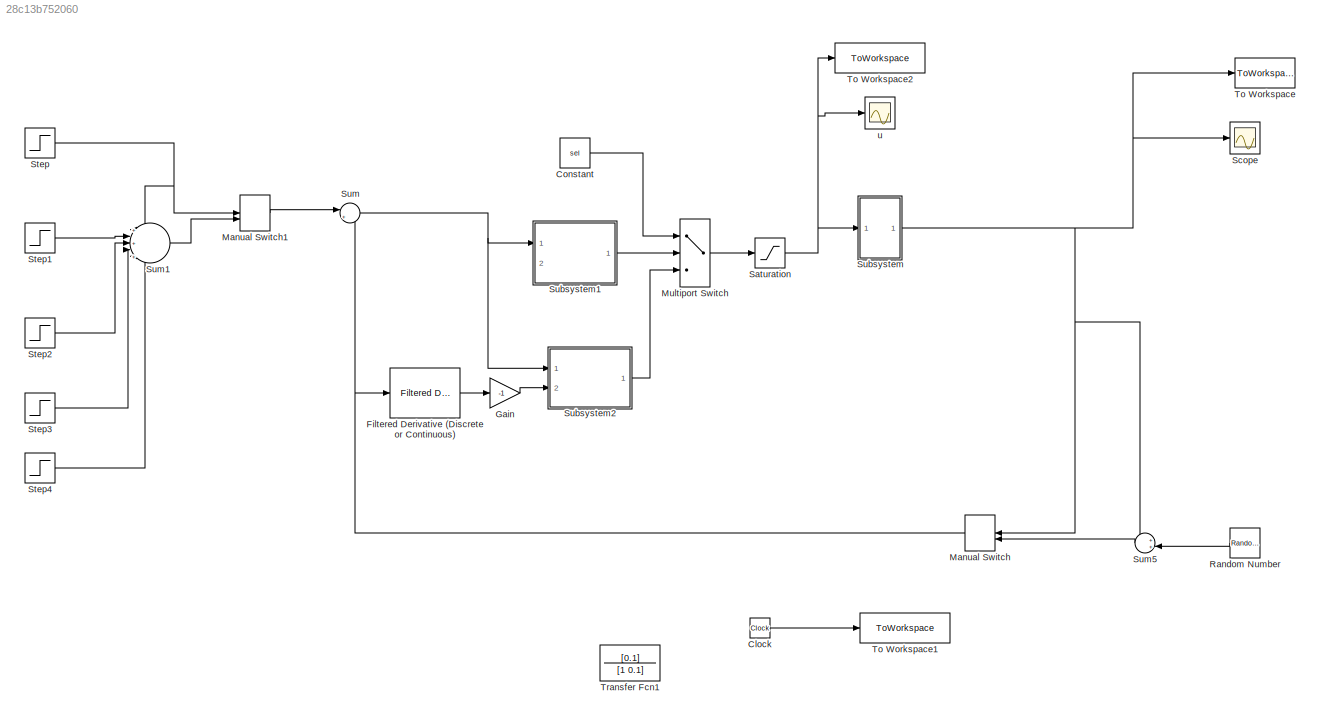
MODEL slx_28c13b752060
KIND model
CONFIG AbsTol = auto
CONFIG EnableMultiTasking = off
CONFIG FixedStep = 1
CONFIG MaxStep = auto
CONFIG MinStep = auto
CONFIG RelTol = 1e-3
CONFIG SampleTimeConstraint = Unconstrained
CONFIG SolverName = ode4
CONFIG StartTime = 0.0
CONFIG StopTime = 60000.0
BLOCK [Clock] Clock
BLOCK [Constant] Constant
  Value = sel
BLOCK [Reference] Filtered Derivative (Discrete or Continuous)  REF=eeGeneralControl/Filtered Derivative
(Discrete or Continuous)
  Ports = [1, 1]
  SourceBlock = eeGeneralControl/Filtered Derivative\n(Discrete or Continuous)
  SourceProductBaseCode = PS
  SourceType = Filtered Derivative (Discrete or Continuous)
BLOCK [Gain] Gain
  Gain = -1
BLOCK [ManualSwitch] Manual Switch
  CurrentSetting = 0
  NameLocation = top
BLOCK [ManualSwitch] Manual Switch1
  CurrentSetting = 0
BLOCK [MultiPortSwitch] Multiport Switch
  InputSameDT = off
  Inputs = 2
  Ports = [3, 1]
  SaturateOnIntegerOverflow = off
BLOCK [RandomNumber] Random Number
  NameLocation = top
  SampleTime = 1
  Variance = 0.1225
BLOCK [Saturate] Saturation
  LowerLimit = 0
  UpperLimit = 10*Fa
BLOCK [Scope] Scope
  Floating = off
  NumInputPorts = 1
  Ports = [1]
  ScopeSpecificationString = Simulink.scopes.TimeScopeBlockCfg('CurrentConfiguration', extmgr.ConfigurationSet(extmgr.Configuration('Core','General UI',true),extmgr.Configuration('Core','Source UI',true),extmgr.Configuration('Sources','WiredSimulink',true,'DataLoggingVariableName','ScopeData1'),extmgr.Configuration('Visuals','Time Domain',true,'SerializedDisplays',{struct('MinYLimReal','5.75525','MaxYLimReal','8.15993','YLabe...<+1419ch>
BLOCK [Step] Step
  After = 7
  SampleTime = 0
  Time = 0
BLOCK [Step] Step1
  After = -0.5
  SampleTime = 0
  Time = 10000
BLOCK [Step] Step2
  After = 0.5
  SampleTime = 0
  Time = 20000
BLOCK [Step] Step3
  After = 0.5
  SampleTime = 0
  Time = 30000
BLOCK [Step] Step4
  After = -0.5
  SampleTime = 0
  Time = 40000
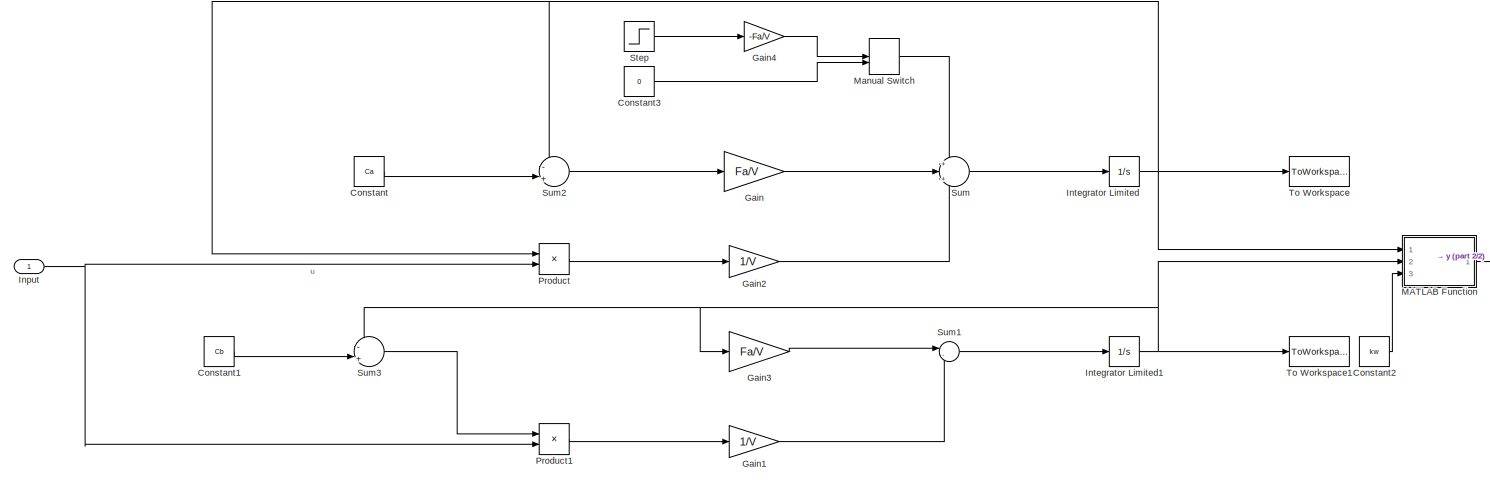
[diagram: Subsystem - part 1/2, most of the canvas]
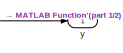
[diagram: Subsystem - part 2/2, middle right region]
BLOCK [SubSystem] Subsystem
  Ports = [1, 1]
  RequestExecContextInheritance = off
BLOCK [Constant] Subsystem/Constant
  Value = Ca
BLOCK [Constant] Subsystem/Constant1
  Value = Cb
BLOCK [Constant] Subsystem/Constant2
  Value = kw
BLOCK [Constant] Subsystem/Constant3
  Value = 0
BLOCK [Gain] Subsystem/Gain
  Gain = Fa/V
BLOCK [Gain] Subsystem/Gain1
  Gain = 1/V
BLOCK [Gain] Subsystem/Gain2
  Gain = 1/V
BLOCK [Gain] Subsystem/Gain3
  Gain = Fa/V
BLOCK [Gain] Subsystem/Gain4
  Gain = -Fa/V
BLOCK [Inport] Subsystem/Input
  IconDisplay = Signal name
BLOCK [Integrator] Subsystem/Integrator Limited
  LimitOutput = on
  LowerSaturationLimit = 0
  Ports = [1, 1]
  UpperSaturationLimit = Ca
BLOCK [Integrator] Subsystem/Integrator Limited1
  LimitOutput = on
  LowerSaturationLimit = 0
  Ports = [1, 1]
  UpperSaturationLimit = Cb
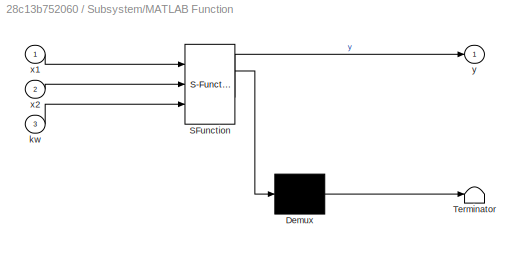
BLOCK [SubSystem] Subsystem/MATLAB Function
  ErrorFcn = Stateflow.Translate.translate
  PermitHierarchicalResolution = ExplicitOnly
  Ports = [3, 1]
  RequestExecContextInheritance = off
  SFBlockType = MATLAB Function
  TreatAsAtomicUnit = on
BLOCK [Demux] Subsystem/MATLAB Function/ Demux 
  Outputs = 1
  Ports = [1, 1]
BLOCK [S-Function] Subsystem/MATLAB Function/ SFunction 
  EnableBusSupport = on
  FunctionName = sf_sfun
  PortCounts = [3 2]
  Ports = [3, 2]
  SFcnIsStateOwnerBlock = off
  SFunctionDeploymentMode = off
  Tag = Stateflow S-Function 2
BLOCK [Terminator] Subsystem/MATLAB Function/ Terminator 
BLOCK [Inport] Subsystem/MATLAB Function/kw
  Port = 3
BLOCK [Inport] Subsystem/MATLAB Function/x1
BLOCK [Inport] Subsystem/MATLAB Function/x2
  Port = 2
BLOCK [Outport] Subsystem/MATLAB Function/y
BLOCK [ManualSwitch] Subsystem/Manual Switch
BLOCK [Product] Subsystem/Product
  Ports = [2, 1]
BLOCK [Product] Subsystem/Product1
  Ports = [2, 1]
BLOCK [Step] Subsystem/Step
  After = 0.5*Ca
  SampleTime = 0
  Time = 50000
BLOCK [Sum] Subsystem/Sum
  Inputs = +|+|-
  Ports = [3, 1]
BLOCK [Sum] Subsystem/Sum1
  Inputs = |-+
  Ports = [2, 1]
BLOCK [Sum] Subsystem/Sum2
  Inputs = -|+||
  Ports = [2, 1]
BLOCK [Sum] Subsystem/Sum3
  Inputs = -|+||
  Ports = [2, 1]
BLOCK [ToWorkspace] Subsystem/To Workspace
  FixptAsFi = on
  MaxDataPoints = inf
  Ports = [1]
  SampleTime = -1
  VariableName = x1
BLOCK [ToWorkspace] Subsystem/To Workspace1
  FixptAsFi = on
  MaxDataPoints = inf
  Ports = [1]
  SampleTime = -1
  VariableName = x2
BLOCK [Outport] Subsystem/y
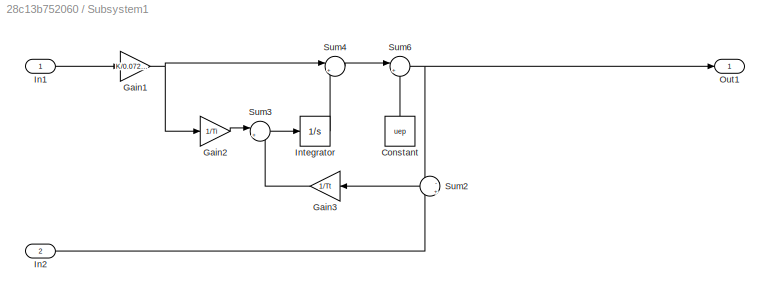
BLOCK [SubSystem] Subsystem1
  Ports = [2, 1]
  RequestExecContextInheritance = off
BLOCK [Constant] Subsystem1/Constant
  NameLocation = right
  Value = uep
BLOCK [Gain] Subsystem1/Gain1
  Gain = K/0.07238
BLOCK [Gain] Subsystem1/Gain2
  Gain = 1/Ti
BLOCK [Gain] Subsystem1/Gain3
  Gain = 1/Tt
  NameLocation = top
BLOCK [Inport] Subsystem1/In1
BLOCK [Inport] Subsystem1/In2
  Port = 2
BLOCK [Integrator] Subsystem1/Integrator
  Ports = [1, 1]
BLOCK [Outport] Subsystem1/Out1
BLOCK [Sum] Subsystem1/Sum2
  Inputs = -|+
  NameLocation = top
  Ports = [2, 1]
BLOCK [Sum] Subsystem1/Sum3
  Inputs = |++
  Ports = [2, 1]
BLOCK [Sum] Subsystem1/Sum4
  Inputs = |++
  Ports = [2, 1]
BLOCK [Sum] Subsystem1/Sum6
  Inputs = |++
  Ports = [2, 1]
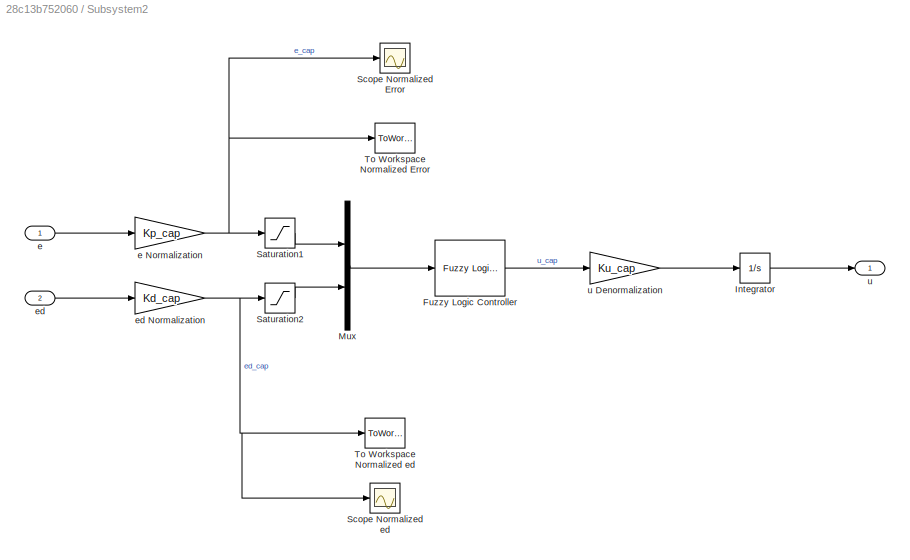
BLOCK [SubSystem] Subsystem2
  Ports = [2, 1]
  RequestExecContextInheritance = off
BLOCK [Reference] Subsystem2/Fuzzy Logic Controller  REF=fuzblock/Fuzzy Logic   (lib defined in mdl_858b3b3e7478)
Controller
  Ports = [1, 1]
  SourceBlock = fuzblock/Fuzzy Logic \nController
  SourceProductBaseCode = FL
  SourceType = Fuzzy Inference System
BLOCK [Integrator] Subsystem2/Integrator
  Ports = [1, 1]
BLOCK [Mux] Subsystem2/Mux
  DisplayOption = bar
  Inputs = 2
  Ports = [2, 1]
BLOCK [Saturate] Subsystem2/Saturation1
  LowerLimit = -1
  UpperLimit = 1
BLOCK [Saturate] Subsystem2/Saturation2
  LowerLimit = -1
  UpperLimit = 1
BLOCK [Scope] Subsystem2/Scope Normalized Error
  Floating = off
  NumInputPorts = 1
  Ports = [1]
  ScopeSpecificationString = Simulink.scopes.TimeScopeBlockCfg('CurrentConfiguration', extmgr.ConfigurationSet(extmgr.Configuration('Core','General UI',true,'FigureColor',[0.156862745098039 0.156862745098039 0.156862745098039]),extmgr.Configuration('Core','Source UI',true),extmgr.Configuration('Sources','WiredSimulink',true,'DataLoggingVariableName','ScopeData3','DataLoggingSaveFormat','Array','DataLoggingDecimation','1','Dat...<+2770ch>
BLOCK [Scope] Subsystem2/Scope Normalized ed
  Floating = off
  NumInputPorts = 1
  Ports = [1]
  ScopeSpecificationString = Simulink.scopes.TimeScopeBlockCfg('CurrentConfiguration', extmgr.ConfigurationSet(extmgr.Configuration('Core','General UI',true,'FigureColor',[0.156862745098039 0.156862745098039 0.156862745098039]),extmgr.Configuration('Core','Source UI',true),extmgr.Configuration('Sources','WiredSimulink',true,'DataLoggingVariableName','ScopeData4','DataLoggingSaveFormat','Array','DataLoggingDecimation','1','Dat...<+2770ch>
BLOCK [ToWorkspace] Subsystem2/To Workspace Normalized Error
  MaxDataPoints = inf
  Ports = [1]
  SampleTime = -1
  VariableName = e_cap
BLOCK [ToWorkspace] Subsystem2/To Workspace Normalized ed
  MaxDataPoints = inf
  Ports = [1]
  SampleTime = -1
  VariableName = ed_cap
BLOCK [Inport] Subsystem2/e
BLOCK [Gain] Subsystem2/e Normalization
  Gain = Kp_cap
  OutDataTypeStr = Inherit: Same as input
  ParamDataTypeStr = Inherit: Same as input
  SaturateOnIntegerOverflow = on
BLOCK [Inport] Subsystem2/ed
  Port = 2
BLOCK [Gain] Subsystem2/ed Normalization
  Gain = Kd_cap
  OutDataTypeStr = Inherit: Same as input
  ParamDataTypeStr = Inherit: Same as input
  SaturateOnIntegerOverflow = on
BLOCK [Outport] Subsystem2/u
BLOCK [Gain] Subsystem2/u Denormalization
  Gain = Ku_cap
  OutDataTypeStr = Inherit: Same as input
  ParamDataTypeStr = Inherit: Same as input
  SaturateOnIntegerOverflow = on
BLOCK [Sum] Sum
  Inputs = |+-
  Ports = [2, 1]
BLOCK [Sum] Sum1
  Inputs = +|+|+++
  Ports = [5, 1]
BLOCK [Sum] Sum5
  Inputs = ++|
  NameLocation = top
  Ports = [2, 1]
BLOCK [ToWorkspace] To Workspace
  FixptAsFi = on
  MaxDataPoints = inf
  Ports = [1]
  SampleTime = -1
  VariableName = y
BLOCK [ToWorkspace] To Workspace1
  FixptAsFi = on
  MaxDataPoints = inf
  Ports = [1]
  SampleTime = -1
  VariableName = t
BLOCK [ToWorkspace] To Workspace2
  FixptAsFi = on
  MaxDataPoints = inf
  Ports = [1]
  SampleTime = -1
  VariableName = u
BLOCK [TransferFcn] Transfer Fcn1
  Denominator = [1 0.1]
  NameLocation = top
  Numerator = [0.1]
BLOCK [Scope] u
  Floating = off
  NumInputPorts = 1
  Ports = [1]
  ScopeSpecificationString = Simulink.scopes.TimeScopeBlockCfg('CurrentConfiguration', extmgr.ConfigurationSet(extmgr.Configuration('Core','General UI',true),extmgr.Configuration('Core','Source UI',true),extmgr.Configuration('Sources','WiredSimulink',true),extmgr.Configuration('Visuals','Time Domain',true,'SerializedDisplays',{struct('MinYLimReal','-0.00994','MaxYLimReal','0.08944','YLabelReal','','MinYLimMag','0.00000','MaxY...<+1417ch>
LINE Clock:1 -> To Workspace1:1
LINE Constant:1 -> Multiport Switch:1
LINE Filtered Derivative (Discrete or Continuous):1 -> Gain:1
LINE Gain:1 -> Subsystem2:2
LINE Manual Switch1:1 -> Sum:1
NET Manual Switch:1 -> Filtered Derivative (Discrete or Continuous):1, Sum:2
LINE Multiport Switch:1 -> Saturation:1
LINE Random Number:1 -> Sum5:2
NET Saturation:1 -> Subsystem:1, To Workspace2:1, u:1
LINE Step1:1 -> Sum1:2
LINE Step2:1 -> Sum1:3
LINE Step3:1 -> Sum1:4
LINE Step4:1 -> Sum1:5
NET Step:1 -> Manual Switch1:1, Sum1:1
LINE Subsystem/Constant1:1 -> Subsystem/Sum3:2
LINE Subsystem/Constant2:1 -> Subsystem/MATLAB Function:3
LINE Subsystem/Constant3:1 -> Subsystem/Manual Switch:2
LINE Subsystem/Constant:1 -> Subsystem/Sum2:2
LINE Subsystem/Gain1:1 -> Subsystem/Sum1:2
LINE Subsystem/Gain2:1 -> Subsystem/Sum:3
LINE Subsystem/Gain3:1 -> Subsystem/Sum1:1
LINE Subsystem/Gain4:1 -> Subsystem/Manual Switch:1
LINE Subsystem/Gain:1 -> Subsystem/Sum:2
NET Subsystem/Input:1 -> Subsystem/Product1:2, Subsystem/Product:2
NET Subsystem/Integrator Limited1:1 -> Subsystem/Gain3:1, Subsystem/MATLAB Function:2, Subsystem/Sum3:1, Subsystem/To Workspace1:1
NET Subsystem/Integrator Limited:1 -> Subsystem/MATLAB Function:1, Subsystem/Product:1, Subsystem/Sum2:1, Subsystem/To Workspace:1
LINE Subsystem/MATLAB Function:1 -> Subsystem/y:1
LINE Subsystem/Manual Switch:1 -> Subsystem/Sum:1
LINE Subsystem/Product1:1 -> Subsystem/Gain1:1
LINE Subsystem/Product:1 -> Subsystem/Gain2:1
LINE Subsystem/Step:1 -> Subsystem/Gain4:1
LINE Subsystem/Sum1:1 -> Subsystem/Integrator Limited1:1
LINE Subsystem/Sum2:1 -> Subsystem/Gain:1
LINE Subsystem/Sum3:1 -> Subsystem/Product1:1
LINE Subsystem/Sum:1 -> Subsystem/Integrator Limited:1
LINE Subsystem1/Constant:1 -> Subsystem1/Sum6:2
NET Subsystem1/Gain1:1 -> Subsystem1/Gain2:1, Subsystem1/Sum4:1
LINE Subsystem1/Gain2:1 -> Subsystem1/Sum3:1
LINE Subsystem1/Gain3:1 -> Subsystem1/Sum3:2
LINE Subsystem1/In1:1 -> Subsystem1/Gain1:1
LINE Subsystem1/In2:1 -> Subsystem1/Sum2:2
LINE Subsystem1/Integrator:1 -> Subsystem1/Sum4:2
LINE Subsystem1/Sum2:1 -> Subsystem1/Gain3:1
LINE Subsystem1/Sum3:1 -> Subsystem1/Integrator:1
LINE Subsystem1/Sum4:1 -> Subsystem1/Sum6:1
NET Subsystem1/Sum6:1 -> Subsystem1/Out1:1, Subsystem1/Sum2:1
LINE Subsystem1:1 -> Multiport Switch:2
LINE Subsystem2/Fuzzy Logic Controller:1 -> Subsystem2/u Denormalization:1
LINE Subsystem2/Integrator:1 -> Subsystem2/u:1
LINE Subsystem2/Mux:1 -> Subsystem2/Fuzzy Logic Controller:1
LINE Subsystem2/Saturation1:1 -> Subsystem2/Mux:1
LINE Subsystem2/Saturation2:1 -> Subsystem2/Mux:2
NET Subsystem2/e Normalization:1 -> Subsystem2/Saturation1:1, Subsystem2/Scope Normalized Error:1, Subsystem2/To Workspace Normalized Error:1
LINE Subsystem2/e:1 -> Subsystem2/e Normalization:1
NET Subsystem2/ed Normalization:1 -> Subsystem2/Saturation2:1, Subsystem2/Scope Normalized ed:1, Subsystem2/To Workspace Normalized ed:1
LINE Subsystem2/ed:1 -> Subsystem2/ed Normalization:1
LINE Subsystem2/u Denormalization:1 -> Subsystem2/Integrator:1
LINE Subsystem2:1 -> Multiport Switch:3
NET Subsystem:1 -> Manual Switch:1, Scope:1, Sum5:1, To Workspace:1
LINE Sum1:1 -> Manual Switch1:2
LINE Sum5:1 -> Manual Switch:2
NET Sum:1 -> Subsystem1:1, Subsystem2:1
note: NET lines group one-source signal fan-out (src -> all destinations, sorted); 1:1 wires keep LINE
CHART Subsystem/MATLAB Function states=1 transitions=1
  STATE_LABEL 'eML_blk_kernel()'
  STATE_LABEL 'SCRIPT:\nfunction y = fcn(x1, x2, kw)\n\ny = -log10(sqrt((x2-x1)^2 / 4 + kw) - (x2 - x1) / 2);\n'
CHART  states=0 transitions=0
